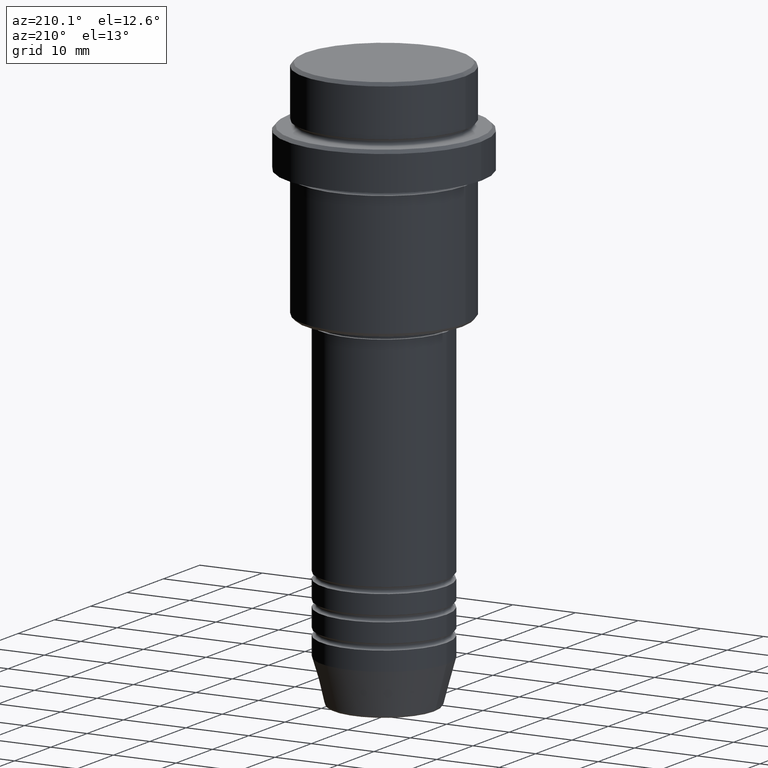
[diagram: clean part render]
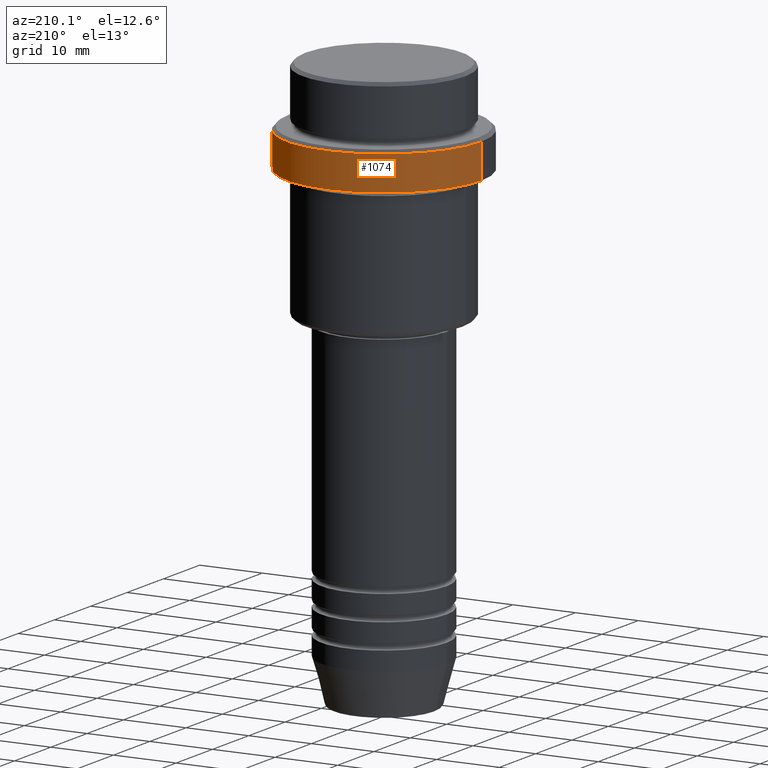
[diagram: same view with one face highlighted and labeled with its STEP entity id]
A machine part, auxiliary view. The second image highlights one B-rep face of the part: STEP entity #1074.
In plain terms, the highlighted cylindrical surface (partial cylindrical patch) has radius 15.5 mm, axis along (-0, -0, 1).
Its self-contained STEP definition (entity closure, byte-faithful):
#56 = CARTESIAN_POINT ( 'NONE',  ( -15.50000000000000000, 1.898202538678397557E-15, 0.000000000000000000 ) ) ;
#72 = LINE ( 'NONE', #397, #769 ) ;
#85 = DIRECTION ( 'NONE',  ( 1.000000000000000000, 0.000000000000000000, 0.000000000000000000 ) ) ;
#257 = CARTESIAN_POINT ( 'NONE',  ( -15.50000000000000000, 1.898202538678397557E-15, -14.99999999999999822 ) ) ;
#279 = CARTESIAN_POINT ( 'NONE',  ( 15.50000000000000000, 0.000000000000000000, -14.99999999999999822 ) ) ;
#283 = ORIENTED_EDGE ( 'NONE', *, *, #455, .T. ) ;
#289 = AXIS2_PLACEMENT_3D ( 'NONE', #1409, #684, #875 ) ;
#385 = AXIS2_PLACEMENT_3D ( 'NONE', #1382, #440, #1073 ) ;
#397 = CARTESIAN_POINT ( 'NONE',  ( 15.50000000000000000, 0.000000000000000000, 0.000000000000000000 ) ) ;
#440 = DIRECTION ( 'NONE',  ( 0.000000000000000000, 0.000000000000000000, -1.000000000000000000 ) ) ;
#443 = CYLINDRICAL_SURFACE ( 'NONE', #289, 15.50000000000000000 ) ;
#455 = EDGE_CURVE ( 'NONE', #605, #1400, #1249, .T. ) ;
#549 = FACE_OUTER_BOUND ( 'NONE', #787, .T. ) ;
#605 = VERTEX_POINT ( 'NONE', #658 ) ;
#658 = CARTESIAN_POINT ( 'NONE',  ( -15.50000000000000000, 1.898202538678397557E-15, -9.499999999999996447 ) ) ;
#673 = ORIENTED_EDGE ( 'NONE', *, *, #1325, .T. ) ;
#684 = DIRECTION ( 'NONE',  ( -0.000000000000000000, -0.000000000000000000, 1.000000000000000000 ) ) ;
#745 = VECTOR ( 'NONE', #806, 1000.000000000000000 ) ;
#769 = VECTOR ( 'NONE', #1054, 1000.000000000000000 ) ;
#783 = EDGE_CURVE ( 'NONE', #851, #605, #1258, .T. ) ;
#787 = EDGE_LOOP ( 'NONE', ( #673, #1125, #283, #991 ) ) ;
#806 = DIRECTION ( 'NONE',  ( -0.000000000000000000, -0.000000000000000000, 1.000000000000000000 ) ) ;
#851 = VERTEX_POINT ( 'NONE', #257 ) ;
#875 = DIRECTION ( 'NONE',  ( 1.000000000000000000, 0.000000000000000000, 0.000000000000000000 ) ) ;
#939 = EDGE_CURVE ( 'NONE', #1379, #1400, #72, .T. ) ;
#949 = CARTESIAN_POINT ( 'NONE',  ( 0.000000000000000000, 0.000000000000000000, -14.99999999999999822 ) ) ;
#991 = ORIENTED_EDGE ( 'NONE', *, *, #939, .F. ) ;
#1001 = AXIS2_PLACEMENT_3D ( 'NONE', #949, #1380, #85 ) ;
#1054 = DIRECTION ( 'NONE',  ( -0.000000000000000000, -0.000000000000000000, 1.000000000000000000 ) ) ;
#1073 = DIRECTION ( 'NONE',  ( 1.000000000000000000, 0.000000000000000000, 0.000000000000000000 ) ) ;
#1074 = ADVANCED_FACE ( 'NONE', ( #549 ), #443, .T. ) ;
#1125 = ORIENTED_EDGE ( 'NONE', *, *, #783, .T. ) ;
#1225 = CIRCLE ( 'NONE', #1001, 15.50000000000000000 ) ;
#1249 = CIRCLE ( 'NONE', #385, 15.50000000000000000 ) ;
#1258 = LINE ( 'NONE', #56, #745 ) ;
#1325 = EDGE_CURVE ( 'NONE', #1379, #851, #1225, .T. ) ;
#1357 = CARTESIAN_POINT ( 'NONE',  ( 15.50000000000000000, 0.000000000000000000, -9.499999999999996447 ) ) ;
#1379 = VERTEX_POINT ( 'NONE', #279 ) ;
#1380 = DIRECTION ( 'NONE',  ( -0.000000000000000000, -0.000000000000000000, 1.000000000000000000 ) ) ;
#1382 = CARTESIAN_POINT ( 'NONE',  ( 0.000000000000000000, 0.000000000000000000, -9.499999999999996447 ) ) ;
#1400 = VERTEX_POINT ( 'NONE', #1357 ) ;
#1409 = CARTESIAN_POINT ( 'NONE',  ( 0.000000000000000000, 0.000000000000000000, 0.000000000000000000 ) ) ;